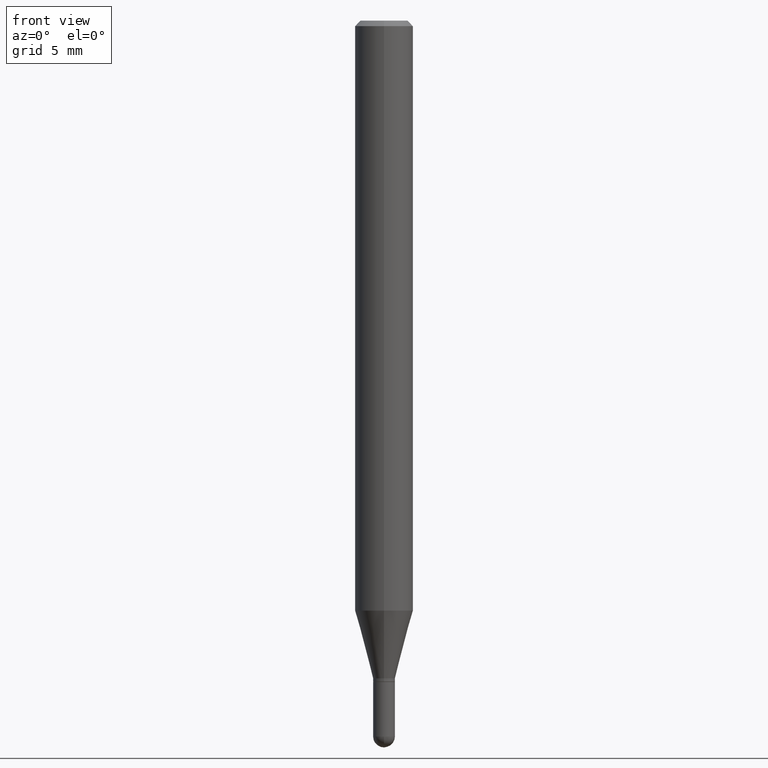
[diagram: clean part render]
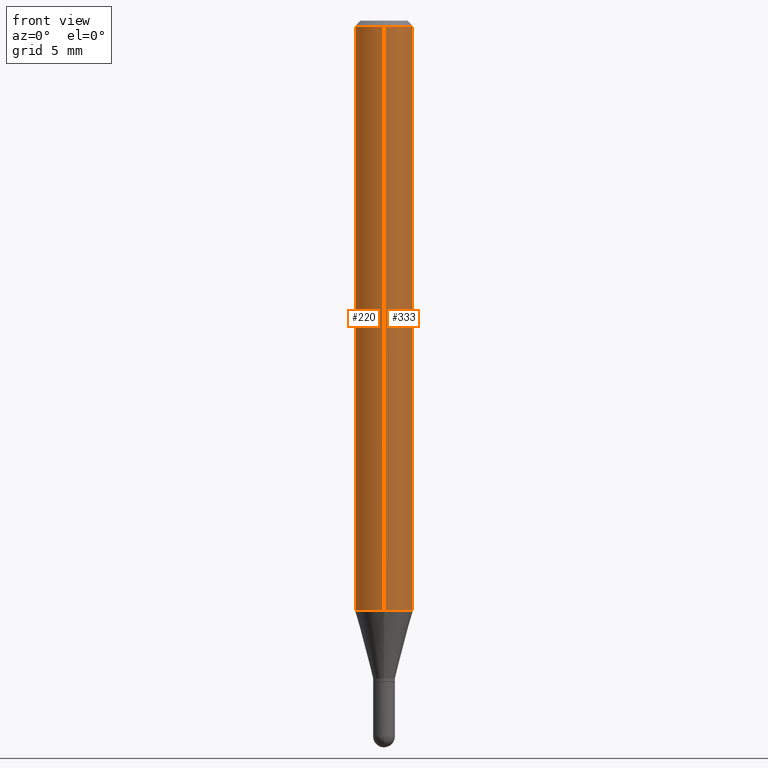
[diagram: same view with one multi-face feature highlighted, each face labeled with its STEP entity id]
A machine part, front view. The highlighted faces form ONE feature: a constant-radius fillet chain: 2 tangent blend faces with common blend radius 2.0002 mm. The faces share edges in the B-rep.
Their STEP definitions:
[1] entity #220 (Cylinder):
#7 = AXIS2_PLACEMENT_3D ( 'NONE', #56, #384, #421 ) ;
#18 = CYLINDRICAL_SURFACE ( 'NONE', #7, 0.07875000000000000056 ) ;
#20 = CARTESIAN_POINT ( 'NONE',  ( 5.595524044111175545E-16, 0.07874999999999438005, -1.597883100267613266 ) ) ;
#26 = AXIS2_PLACEMENT_3D ( 'NONE', #415, #370, #167 ) ;
#56 = CARTESIAN_POINT ( 'NONE',  ( 0.000000000000000000, 0.000000000000000000, 0.000000000000000000 ) ) ;
#80 = CIRCLE ( 'NONE', #26, 0.07875000000000000056 ) ;
#86 = CARTESIAN_POINT ( 'NONE',  ( 5.595524044110787031E-16, 0.07875000000000000056, -2.749592736799546417E-16 ) ) ;
#91 = EDGE_CURVE ( 'NONE', #401, #502, #80, .T. ) ;
#108 = DIRECTION ( 'NONE',  ( -2.445423421396323107E-29, 3.491546332443868973E-15, 1.000000000000000000 ) ) ;
#133 = EDGE_CURVE ( 'NONE', #401, #512, #375, .T. ) ;
#149 = CARTESIAN_POINT ( 'NONE',  ( -5.499083108677933457E-16, -0.07875000000000000056, 2.749592736799546417E-16 ) ) ;
#162 = EDGE_LOOP ( 'NONE', ( #326, #427, #368, #407 ) ) ;
#167 = DIRECTION ( 'NONE',  ( -6.982962677686264344E-15, -1.000000000000000000, 3.469013325287953293E-15 ) ) ;
#172 = EDGE_CURVE ( 'NONE', #512, #361, #296, .T. ) ;
#176 = LINE ( 'NONE', #149, #491 ) ;
#189 = VECTOR ( 'NONE', #371, 39.37007874015748143 ) ;
#220 = ADVANCED_FACE ( 'NONE', ( #492 ), #18, .T. ) ;
#269 = CARTESIAN_POINT ( 'NONE',  ( 5.595524044111180475E-16, 0.07874999999999994504, -0.01500000000000004108 ) ) ;
#285 = CARTESIAN_POINT ( 'NONE',  ( -5.499083108677930499E-16, -0.07875000000000004219, -0.01499999999999948944 ) ) ;
#296 = CIRCLE ( 'NONE', #355, 0.07875000000000000056 ) ;
#326 = ORIENTED_EDGE ( 'NONE', *, *, #133, .F. ) ;
#347 = DIRECTION ( 'NONE',  ( -6.982962677686264344E-15, -1.000000000000000000, 3.496114991891765576E-15 ) ) ;
#355 = AXIS2_PLACEMENT_3D ( 'NONE', #446, #451, #347 ) ;
#361 = VERTEX_POINT ( 'NONE', #285 ) ;
#368 = ORIENTED_EDGE ( 'NONE', *, *, #404, .T. ) ;
#370 = DIRECTION ( 'NONE',  ( -2.445423421396322827E-29, 3.491546332443868579E-15, 1.000000000000000000 ) ) ;
#371 = DIRECTION ( 'NONE',  ( -2.445423421396323107E-29, 3.491546332443868973E-15, 1.000000000000000000 ) ) ;
#375 = LINE ( 'NONE', #86, #189 ) ;
#384 = DIRECTION ( 'NONE',  ( -2.445423421396322827E-29, 3.491546332443868579E-15, 1.000000000000000000 ) ) ;
#401 = VERTEX_POINT ( 'NONE', #20 ) ;
#404 = EDGE_CURVE ( 'NONE', #502, #361, #176, .T. ) ;
#407 = ORIENTED_EDGE ( 'NONE', *, *, #172, .F. ) ;
#415 = CARTESIAN_POINT ( 'NONE',  ( 3.907500758047788968E-29, -5.579082878413422637E-15, -1.597883100267613043 ) ) ;
#421 = DIRECTION ( 'NONE',  ( -6.982962677686264344E-15, -1.000000000000000000, 3.491546332443868579E-15 ) ) ;
#427 = ORIENTED_EDGE ( 'NONE', *, *, #91, .T. ) ;
#446 = CARTESIAN_POINT ( 'NONE',  ( 3.668135132094426700E-31, -5.237319498665721788E-17, -0.01499999999999976526 ) ) ;
#451 = DIRECTION ( 'NONE',  ( -2.445423421396322827E-29, 3.491546332443868579E-15, 1.000000000000000000 ) ) ;
#487 = CARTESIAN_POINT ( 'NONE',  ( -5.499083108677545929E-16, -0.07875000000000559330, -1.597883100267612599 ) ) ;
#491 = VECTOR ( 'NONE', #108, 39.37007874015748143 ) ;
#492 = FACE_OUTER_BOUND ( 'NONE', #162, .T. ) ;
#502 = VERTEX_POINT ( 'NONE', #487 ) ;
#512 = VERTEX_POINT ( 'NONE', #269 ) ;
[2] entity #333 (Cylinder):
#20 = CARTESIAN_POINT ( 'NONE',  ( 5.595524044111175545E-16, 0.07874999999999438005, -1.597883100267613266 ) ) ;
#31 = ORIENTED_EDGE ( 'NONE', *, *, #133, .T. ) ;
#67 = EDGE_CURVE ( 'NONE', #502, #401, #263, .T. ) ;
#69 = AXIS2_PLACEMENT_3D ( 'NONE', #179, #448, #97 ) ;
#76 = ORIENTED_EDGE ( 'NONE', *, *, #67, .T. ) ;
#86 = CARTESIAN_POINT ( 'NONE',  ( 5.595524044110787031E-16, 0.07875000000000000056, -2.749592736799546417E-16 ) ) ;
#97 = DIRECTION ( 'NONE',  ( -6.982962677686264344E-15, -1.000000000000000000, 3.469013325287953293E-15 ) ) ;
#100 = DIRECTION ( 'NONE',  ( -2.445423421396322827E-29, 3.491546332443868579E-15, 1.000000000000000000 ) ) ;
#108 = DIRECTION ( 'NONE',  ( -2.445423421396323107E-29, 3.491546332443868973E-15, 1.000000000000000000 ) ) ;
#111 = EDGE_LOOP ( 'NONE', ( #76, #31, #406, #112 ) ) ;
#112 = ORIENTED_EDGE ( 'NONE', *, *, #404, .F. ) ;
#126 = FACE_OUTER_BOUND ( 'NONE', #111, .T. ) ;
#133 = EDGE_CURVE ( 'NONE', #401, #512, #375, .T. ) ;
#149 = CARTESIAN_POINT ( 'NONE',  ( -5.499083108677933457E-16, -0.07875000000000000056, 2.749592736799546417E-16 ) ) ;
#176 = LINE ( 'NONE', #149, #491 ) ;
#179 = CARTESIAN_POINT ( 'NONE',  ( 3.907500758047788968E-29, -5.579082878413422637E-15, -1.597883100267613043 ) ) ;
#183 = DIRECTION ( 'NONE',  ( -6.982962677686264344E-15, -1.000000000000000000, 3.496114991891765576E-15 ) ) ;
#189 = VECTOR ( 'NONE', #371, 39.37007874015748143 ) ;
#208 = DIRECTION ( 'NONE',  ( -2.445423421396322827E-29, 3.491546332443868579E-15, 1.000000000000000000 ) ) ;
#243 = DIRECTION ( 'NONE',  ( -6.982962677686264344E-15, -1.000000000000000000, 3.491546332443868579E-15 ) ) ;
#250 = EDGE_CURVE ( 'NONE', #361, #512, #364, .T. ) ;
#263 = CIRCLE ( 'NONE', #69, 0.07875000000000000056 ) ;
#269 = CARTESIAN_POINT ( 'NONE',  ( 5.595524044111180475E-16, 0.07874999999999994504, -0.01500000000000004108 ) ) ;
#285 = CARTESIAN_POINT ( 'NONE',  ( -5.499083108677930499E-16, -0.07875000000000004219, -0.01499999999999948944 ) ) ;
#289 = AXIS2_PLACEMENT_3D ( 'NONE', #442, #208, #243 ) ;
#294 = CYLINDRICAL_SURFACE ( 'NONE', #289, 0.07875000000000000056 ) ;
#333 = ADVANCED_FACE ( 'NONE', ( #126 ), #294, .T. ) ;
#361 = VERTEX_POINT ( 'NONE', #285 ) ;
#364 = CIRCLE ( 'NONE', #499, 0.07875000000000000056 ) ;
#371 = DIRECTION ( 'NONE',  ( -2.445423421396323107E-29, 3.491546332443868973E-15, 1.000000000000000000 ) ) ;
#375 = LINE ( 'NONE', #86, #189 ) ;
#382 = CARTESIAN_POINT ( 'NONE',  ( 3.668135132094426700E-31, -5.237319498665721788E-17, -0.01499999999999976526 ) ) ;
#401 = VERTEX_POINT ( 'NONE', #20 ) ;
#404 = EDGE_CURVE ( 'NONE', #502, #361, #176, .T. ) ;
#406 = ORIENTED_EDGE ( 'NONE', *, *, #250, .F. ) ;
#442 = CARTESIAN_POINT ( 'NONE',  ( 0.000000000000000000, 0.000000000000000000, 0.000000000000000000 ) ) ;
#448 = DIRECTION ( 'NONE',  ( -2.445423421396322827E-29, 3.491546332443868579E-15, 1.000000000000000000 ) ) ;
#487 = CARTESIAN_POINT ( 'NONE',  ( -5.499083108677545929E-16, -0.07875000000000559330, -1.597883100267612599 ) ) ;
#491 = VECTOR ( 'NONE', #108, 39.37007874015748143 ) ;
#499 = AXIS2_PLACEMENT_3D ( 'NONE', #382, #100, #183 ) ;
#502 = VERTEX_POINT ( 'NONE', #487 ) ;
#512 = VERTEX_POINT ( 'NONE', #269 ) ;